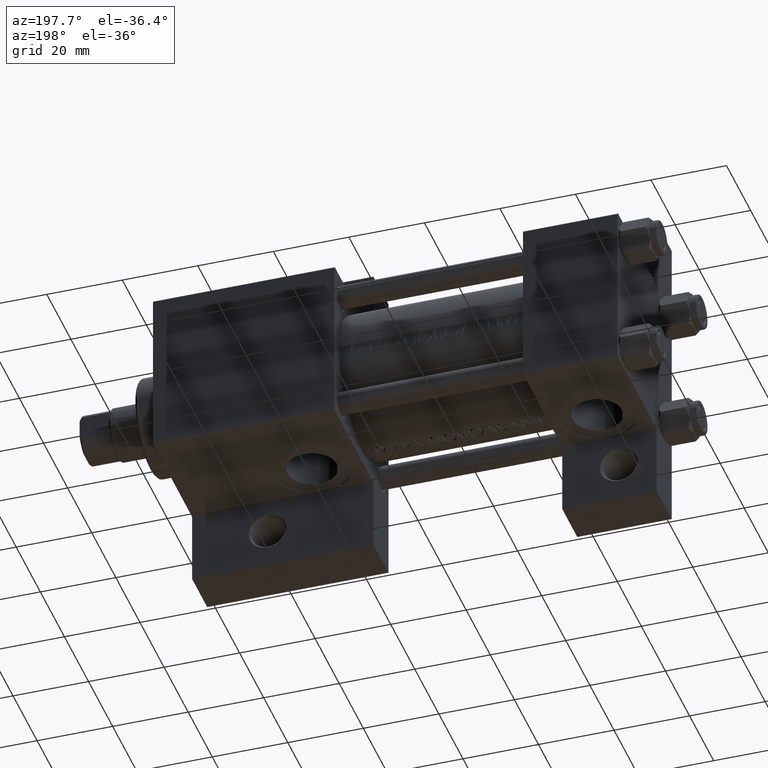
[diagram: clean part render]
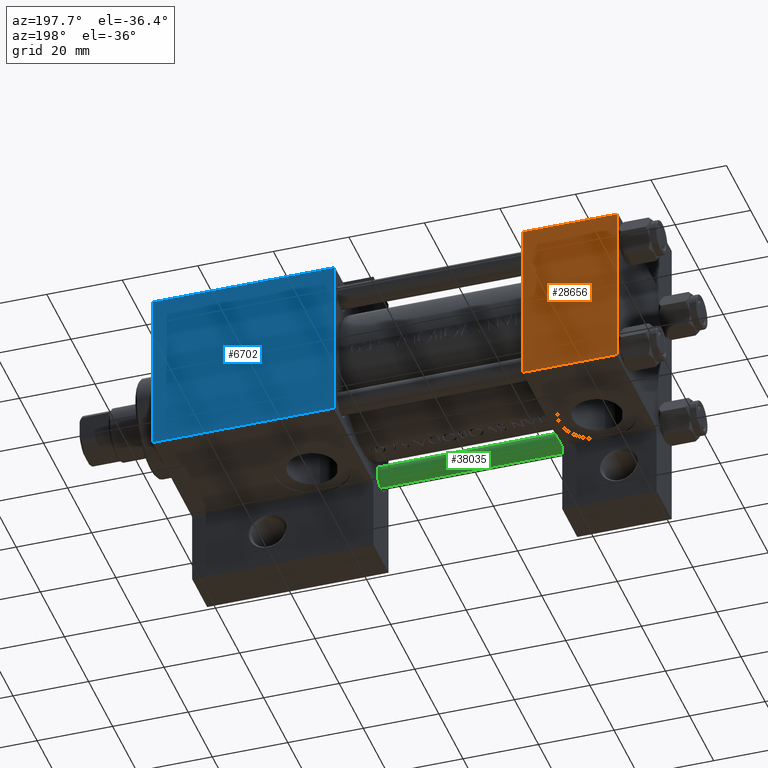
[diagram: same view with three faces highlighted in distinct colors, each labeled with its STEP entity id]
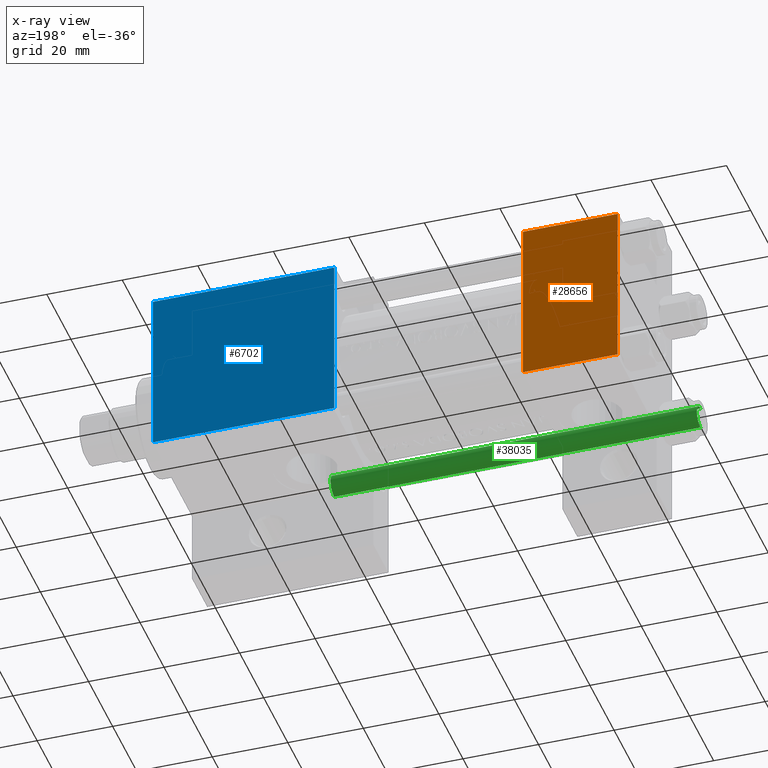
[diagram: x-ray of the same camera — body ghosted, the three highlighted faces saturated]
A machine part, auxiliary view with three faces highlighted in distinct colors.
The next image is the same camera in x-ray (body ghosted, the three faces saturated) — at least one of them is partly hidden behind the body in this view.
Their STEP definitions:

[orange] entity #28656 — the highlighted planar face has unit normal (0, -1, -0).
#1061 = CARTESIAN_POINT ( 'NONE',  ( 0.000000000000000000, 21.99999999999999289, 22.50000000000000355 ) ) ;
#2964 = VECTOR ( 'NONE', #44614, 1000.000000000000000 ) ;
#2969 = VECTOR ( 'NONE', #5519, 1000.000000000000000 ) ;
#5519 = DIRECTION ( 'NONE',  ( 0.000000000000000000, -1.000000000000000000, -7.709882115452476934E-17 ) ) ;
#6384 = ORIENTED_EDGE ( 'NONE', *, *, #9155, .T. ) ;
#8119 = EDGE_CURVE ( 'NONE', #43010, #35569, #30935, .T. ) ;
#9036 = DIRECTION ( 'NONE',  ( 0.000000000000000000, -1.000000000000000000, -7.709882115452476934E-17 ) ) ;
#9155 = EDGE_CURVE ( 'NONE', #21483, #26192, #35345, .T. ) ;
#10284 = CARTESIAN_POINT ( 'NONE',  ( 25.00000000000000000, -21.99999999999997868, 22.50000000000000000 ) ) ;
#10710 = CARTESIAN_POINT ( 'NONE',  ( 0.000000000000000000, 21.99999999999999289, 22.50000000000000355 ) ) ;
#12197 = CARTESIAN_POINT ( 'NONE',  ( 25.00000000000000000, 22.50000000000000000, 22.50000000000000355 ) ) ;
#13216 = EDGE_CURVE ( 'NONE', #43010, #21483, #40768, .T. ) ;
#13685 = VECTOR ( 'NONE', #9036, 1000.000000000000000 ) ;
#14236 = EDGE_LOOP ( 'NONE', ( #6384, #29915, #15773, #33973 ) ) ;
#14460 = CARTESIAN_POINT ( 'NONE',  ( 0.000000000000000000, -21.99999999999997868, 22.50000000000000000 ) ) ;
#15773 = ORIENTED_EDGE ( 'NONE', *, *, #8119, .F. ) ;
#19801 = LINE ( 'NONE', #23656, #31085 ) ;
#19888 = DIRECTION ( 'NONE',  ( 0.000000000000000000, 1.000000000000000000, 7.709882115452476934E-17 ) ) ;
#20135 = PLANE ( 'NONE',  #26117 ) ;
#20288 = DIRECTION ( 'NONE',  ( 1.000000000000000000, 0.000000000000000000, 0.000000000000000000 ) ) ;
#21483 = VERTEX_POINT ( 'NONE', #1061 ) ;
#23656 = CARTESIAN_POINT ( 'NONE',  ( 25.00000000000000000, -21.99999999999999289, 22.50000000000000000 ) ) ;
#26117 = AXIS2_PLACEMENT_3D ( 'NONE', #12197, #37450, #19888 ) ;
#26192 = VERTEX_POINT ( 'NONE', #14460 ) ;
#26875 = FACE_OUTER_BOUND ( 'NONE', #14236, .T. ) ;
#28656 = ADVANCED_FACE ( 'NONE', ( #26875 ), #20135, .F. ) ;
#29915 = ORIENTED_EDGE ( 'NONE', *, *, #42595, .T. ) ;
#30935 = LINE ( 'NONE', #39751, #13685 ) ;
#31085 = VECTOR ( 'NONE', #20288, 1000.000000000000000 ) ;
#33973 = ORIENTED_EDGE ( 'NONE', *, *, #13216, .T. ) ;
#35345 = LINE ( 'NONE', #42314, #2969 ) ;
#35569 = VERTEX_POINT ( 'NONE', #10284 ) ;
#37450 = DIRECTION ( 'NONE',  ( 0.000000000000000000, 7.709882115452476934E-17, -1.000000000000000000 ) ) ;
#39751 = CARTESIAN_POINT ( 'NONE',  ( 25.00000000000000000, 22.50000000000000000, 22.50000000000000355 ) ) ;
#40768 = LINE ( 'NONE', #10710, #2964 ) ;
#42314 = CARTESIAN_POINT ( 'NONE',  ( 0.000000000000000000, 22.50000000000000000, 22.50000000000000355 ) ) ;
#42595 = EDGE_CURVE ( 'NONE', #26192, #35569, #19801, .T. ) ;
#42944 = CARTESIAN_POINT ( 'NONE',  ( 25.00000000000000000, 21.99999999999999289, 22.50000000000000355 ) ) ;
#43010 = VERTEX_POINT ( 'NONE', #42944 ) ;
#44614 = DIRECTION ( 'NONE',  ( -1.000000000000000000, 0.000000000000000000, 0.000000000000000000 ) ) ;

[blue] entity #6702 — the highlighted planar face has unit normal (0, -1, -0).
#360 = VECTOR ( 'NONE', #37251, 1000.000000000000000 ) ;
#1284 = CARTESIAN_POINT ( 'NONE',  ( 75.00000000000001421, 22.50000000000000355, 22.50000000000000355 ) ) ;
#3628 = EDGE_CURVE ( 'NONE', #23305, #35116, #47584, .T. ) ;
#4117 = DIRECTION ( 'NONE',  ( 1.000000000000000000, 0.000000000000000000, 0.000000000000000000 ) ) ;
#4192 = ORIENTED_EDGE ( 'NONE', *, *, #3628, .T. ) ;
#4493 = CARTESIAN_POINT ( 'NONE',  ( 75.00000000000001421, 21.99999999999998934, 22.50000000000000355 ) ) ;
#4817 = LINE ( 'NONE', #15648, #32928 ) ;
#5746 = CARTESIAN_POINT ( 'NONE',  ( 123.0000000000000142, 22.50000000000000355, 22.50000000000000355 ) ) ;
#5842 = DIRECTION ( 'NONE',  ( 0.000000000000000000, -1.000000000000000000, -2.312964634635742957E-16 ) ) ;
#6702 = ADVANCED_FACE ( 'NONE', ( #46878 ), #43260, .F. ) ;
#10482 = VECTOR ( 'NONE', #25451, 1000.000000000000000 ) ;
#11766 = CARTESIAN_POINT ( 'NONE',  ( 123.0000000000000142, 22.50000000000000355, 22.50000000000000355 ) ) ;
#12531 = CARTESIAN_POINT ( 'NONE',  ( 75.00000000000001421, 21.99999999999998934, 22.50000000000000355 ) ) ;
#13025 = CARTESIAN_POINT ( 'NONE',  ( 123.0000000000000142, -21.99999999999996803, 22.49999999999999289 ) ) ;
#14121 = VERTEX_POINT ( 'NONE', #13025 ) ;
#15648 = CARTESIAN_POINT ( 'NONE',  ( 123.0000000000000142, -21.99999999999998224, 22.49999999999999289 ) ) ;
#17079 = ORIENTED_EDGE ( 'NONE', *, *, #22096, .T. ) ;
#17197 = EDGE_LOOP ( 'NONE', ( #20606, #4192, #22342, #17079 ) ) ;
#20606 = ORIENTED_EDGE ( 'NONE', *, *, #41239, .F. ) ;
#22096 = EDGE_CURVE ( 'NONE', #26386, #14121, #4817, .T. ) ;
#22342 = ORIENTED_EDGE ( 'NONE', *, *, #42495, .T. ) ;
#23305 = VERTEX_POINT ( 'NONE', #31755 ) ;
#24986 = DIRECTION ( 'NONE',  ( 0.000000000000000000, 1.000000000000000000, 2.312964634635742957E-16 ) ) ;
#25451 = DIRECTION ( 'NONE',  ( -1.000000000000000000, 0.000000000000000000, 0.000000000000000000 ) ) ;
#26386 = VERTEX_POINT ( 'NONE', #45688 ) ;
#31590 = LINE ( 'NONE', #1284, #45563 ) ;
#31755 = CARTESIAN_POINT ( 'NONE',  ( 123.0000000000000142, 21.99999999999998934, 22.50000000000000355 ) ) ;
#32928 = VECTOR ( 'NONE', #4117, 1000.000000000000000 ) ;
#35116 = VERTEX_POINT ( 'NONE', #12531 ) ;
#37251 = DIRECTION ( 'NONE',  ( 0.000000000000000000, -1.000000000000000000, -2.312964634635742957E-16 ) ) ;
#38942 = AXIS2_PLACEMENT_3D ( 'NONE', #5746, #42543, #24986 ) ;
#41239 = EDGE_CURVE ( 'NONE', #23305, #14121, #41561, .T. ) ;
#41561 = LINE ( 'NONE', #11766, #360 ) ;
#42495 = EDGE_CURVE ( 'NONE', #35116, #26386, #31590, .T. ) ;
#42543 = DIRECTION ( 'NONE',  ( 0.000000000000000000, 2.312964634635742957E-16, -1.000000000000000000 ) ) ;
#43260 = PLANE ( 'NONE',  #38942 ) ;
#45563 = VECTOR ( 'NONE', #5842, 1000.000000000000000 ) ;
#45688 = CARTESIAN_POINT ( 'NONE',  ( 75.00000000000001421, -21.99999999999996803, 22.49999999999999289 ) ) ;
#46878 = FACE_OUTER_BOUND ( 'NONE', #17197, .T. ) ;
#47584 = LINE ( 'NONE', #4493, #10482 ) ;

[green] entity #38035 — the highlighted cylindrical surface (edge-blend (fillet) strip) has radius 3 mm, axis along (-1, 0, 0).
#1451 = CARTESIAN_POINT ( 'NONE',  ( 0.000000000000000000, 0.000000000000000000, 0.5000000000000281997 ) ) ;
#7427 = EDGE_CURVE ( 'NONE', #30648, #31179, #45801, .T. ) ;
#9635 = ORIENTED_EDGE ( 'NONE', *, *, #37040, .T. ) ;
#9898 = AXIS2_PLACEMENT_3D ( 'NONE', #46989, #25810, #39756 ) ;
#10025 = LINE ( 'NONE', #42968, #16113 ) ;
#13843 = EDGE_CURVE ( 'NONE', #30648, #39658, #33743, .T. ) ;
#14852 = AXIS2_PLACEMENT_3D ( 'NONE', #18754, #33430, #40634 ) ;
#16113 = VECTOR ( 'NONE', #31428, 1000.000000000000000 ) ;
#18521 = CYLINDRICAL_SURFACE ( 'NONE', #14852, 3.000000000000000444 ) ;
#18754 = CARTESIAN_POINT ( 'NONE',  ( 0.000000000000000000, 0.000000000000000000, 98.00000000000000000 ) ) ;
#19839 = CARTESIAN_POINT ( 'NONE',  ( -3.000000000000000444, 0.000000000000000000, 97.50000000000001421 ) ) ;
#21778 = ORIENTED_EDGE ( 'NONE', *, *, #7427, .F. ) ;
#22509 = CIRCLE ( 'NONE', #26348, 3.000000000000000444 ) ;
#23639 = VECTOR ( 'NONE', #46763, 1000.000000000000000 ) ;
#25333 = ORIENTED_EDGE ( 'NONE', *, *, #28678, .T. ) ;
#25810 = DIRECTION ( 'NONE',  ( 0.000000000000000000, 0.000000000000000000, -1.000000000000000000 ) ) ;
#26348 = AXIS2_PLACEMENT_3D ( 'NONE', #1451, #37769, #30334 ) ;
#26817 = CARTESIAN_POINT ( 'NONE',  ( 3.000000000000000444, 3.673940397442060361E-16, 0.5000000000000281997 ) ) ;
#26996 = CARTESIAN_POINT ( 'NONE',  ( 3.000000000000000444, 3.673940397442060361E-16, 97.50000000000001421 ) ) ;
#28678 = EDGE_CURVE ( 'NONE', #39658, #40095, #10025, .T. ) ;
#30329 = CARTESIAN_POINT ( 'NONE',  ( -3.000000000000000444, 0.000000000000000000, 0.5000000000000281997 ) ) ;
#30334 = DIRECTION ( 'NONE',  ( 1.000000000000000000, 0.000000000000000000, 0.000000000000000000 ) ) ;
#30648 = VERTEX_POINT ( 'NONE', #26996 ) ;
#31179 = VERTEX_POINT ( 'NONE', #26817 ) ;
#31428 = DIRECTION ( 'NONE',  ( -0.000000000000000000, -0.000000000000000000, -1.000000000000000000 ) ) ;
#32729 = ORIENTED_EDGE ( 'NONE', *, *, #13843, .T. ) ;
#33430 = DIRECTION ( 'NONE',  ( -0.000000000000000000, -0.000000000000000000, -1.000000000000000000 ) ) ;
#33743 = CIRCLE ( 'NONE', #9898, 3.000000000000000444 ) ;
#35701 = CARTESIAN_POINT ( 'NONE',  ( 3.000000000000000444, 3.673940397442060361E-16, 98.00000000000000000 ) ) ;
#36085 = FACE_OUTER_BOUND ( 'NONE', #39205, .T. ) ;
#37040 = EDGE_CURVE ( 'NONE', #40095, #31179, #22509, .T. ) ;
#37769 = DIRECTION ( 'NONE',  ( -0.000000000000000000, -0.000000000000000000, 1.000000000000000000 ) ) ;
#38035 = ADVANCED_FACE ( 'NONE', ( #36085 ), #18521, .T. ) ;
#39205 = EDGE_LOOP ( 'NONE', ( #21778, #32729, #25333, #9635 ) ) ;
#39658 = VERTEX_POINT ( 'NONE', #19839 ) ;
#39756 = DIRECTION ( 'NONE',  ( 1.000000000000000000, 0.000000000000000000, 0.000000000000000000 ) ) ;
#40095 = VERTEX_POINT ( 'NONE', #30329 ) ;
#40634 = DIRECTION ( 'NONE',  ( -1.000000000000000000, 0.000000000000000000, 0.000000000000000000 ) ) ;
#42968 = CARTESIAN_POINT ( 'NONE',  ( -3.000000000000000444, 0.000000000000000000, 98.00000000000000000 ) ) ;
#45801 = LINE ( 'NONE', #35701, #23639 ) ;
#46763 = DIRECTION ( 'NONE',  ( -0.000000000000000000, -0.000000000000000000, -1.000000000000000000 ) ) ;
#46989 = CARTESIAN_POINT ( 'NONE',  ( 0.000000000000000000, 0.000000000000000000, 97.50000000000001421 ) ) ;